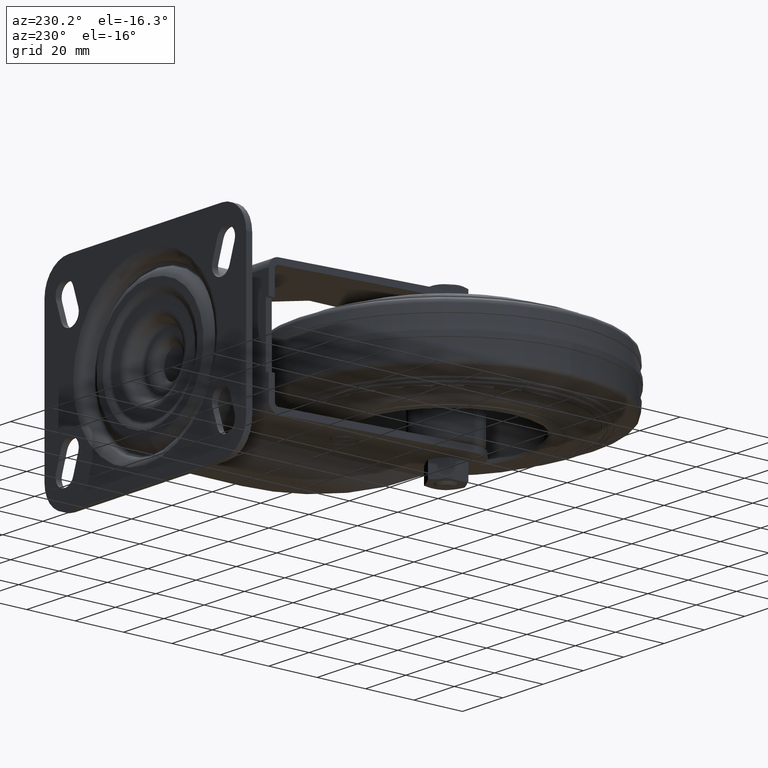
[diagram: clean part render]
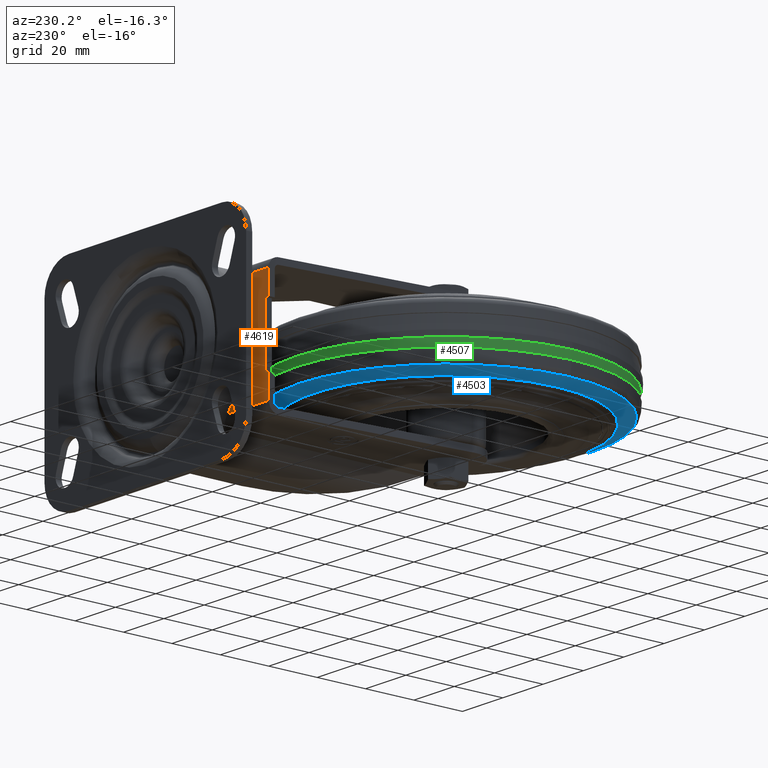
[diagram: same view with three faces highlighted in distinct colors, each labeled with its STEP entity id]
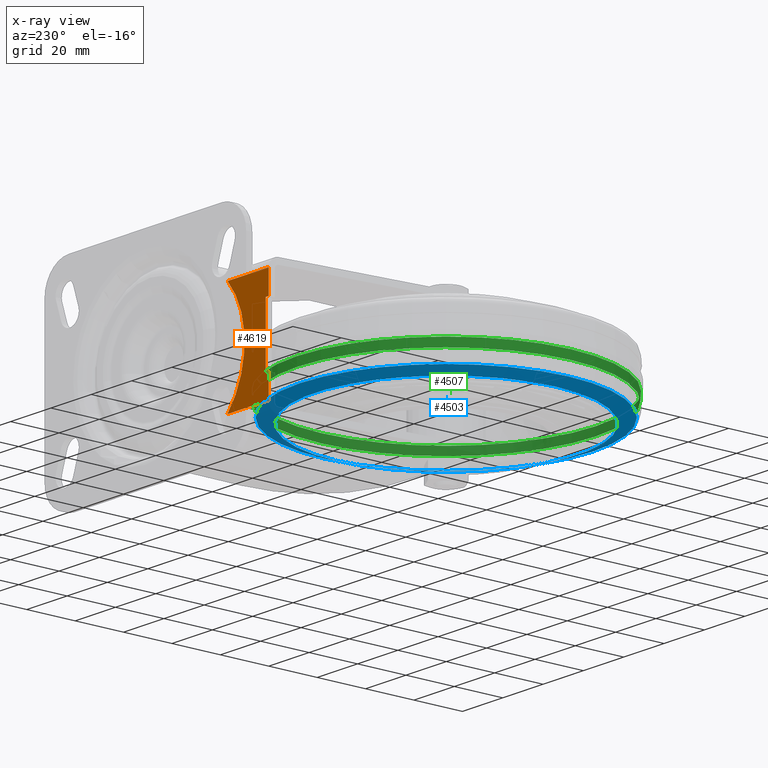
[diagram: x-ray of the same camera — body ghosted, the three highlighted faces saturated]
A machine part, auxiliary view with three faces highlighted in distinct colors.
The next image is the same camera in x-ray (body ghosted, the three faces saturated) — at least one of them is partly hidden behind the body in this view.
Their STEP definitions:

[orange] entity #4619 — the highlighted planar face has unit normal (0, 1, 0).
#464=CIRCLE('',#5260,33.);
#660=FACE_OUTER_BOUND('',#964,.T.);
#964=EDGE_LOOP('',(#3570,#3571,#3572,#3573,#3574,#3575,#3576,#3577));
#1182=LINE('',#7262,#1533);
#1233=LINE('',#7421,#1584);
#1253=LINE('',#7521,#1604);
#1308=LINE('',#7738,#1659);
#1309=LINE('',#7741,#1660);
#1310=LINE('',#7743,#1661);
#1311=LINE('',#7744,#1662);
#1533=VECTOR('',#5946,1000.);
#1584=VECTOR('',#6033,1000.);
#1604=VECTOR('',#6111,1000.);
#1659=VECTOR('',#6354,1000.);
#1660=VECTOR('',#6357,1000.);
#1661=VECTOR('',#6358,1000.);
#1662=VECTOR('',#6359,1000.);
#1928=VERTEX_POINT('',#7259);
#1929=VERTEX_POINT('',#7261);
#1994=VERTEX_POINT('',#7407);
#1995=VERTEX_POINT('',#7420);
#2022=VERTEX_POINT('',#7520);
#2090=VERTEX_POINT('',#7737);
#2091=VERTEX_POINT('',#7740);
#2092=VERTEX_POINT('',#7742);
#2411=EDGE_CURVE('',#1928,#1929,#1182,.T.);
#2479=EDGE_CURVE('',#1995,#1994,#1233,.T.);
#2519=EDGE_CURVE('',#1995,#2022,#1253,.T.);
#2625=EDGE_CURVE('',#2022,#2090,#1308,.T.);
#2626=EDGE_CURVE('',#1929,#1994,#464,.T.);
#2627=EDGE_CURVE('',#2091,#1928,#1309,.T.);
#2628=EDGE_CURVE('',#2091,#2092,#1310,.T.);
#2629=EDGE_CURVE('',#2092,#2090,#1311,.T.);
#3570=ORIENTED_EDGE('',*,*,#2625,.F.);
#3571=ORIENTED_EDGE('',*,*,#2519,.F.);
#3572=ORIENTED_EDGE('',*,*,#2479,.T.);
#3573=ORIENTED_EDGE('',*,*,#2626,.F.);
#3574=ORIENTED_EDGE('',*,*,#2411,.F.);
#3575=ORIENTED_EDGE('',*,*,#2627,.F.);
#3576=ORIENTED_EDGE('',*,*,#2628,.T.);
#3577=ORIENTED_EDGE('',*,*,#2629,.T.);
#4171=PLANE('',#5259);
#4619=ADVANCED_FACE('',(#660),#4171,.T.);
#5259=AXIS2_PLACEMENT_3D('',#7736,#6352,#6353);
#5260=AXIS2_PLACEMENT_3D('',#7739,#6355,#6356);
#5946=DIRECTION('',(1.,0.,0.));
#6033=DIRECTION('',(1.,0.,0.));
#6111=DIRECTION('',(0.,0.,-1.));
#6352=DIRECTION('center_axis',(0.,1.,0.));
#6353=DIRECTION('ref_axis',(0.,0.,1.));
#6354=DIRECTION('',(1.,0.,0.));
#6355=DIRECTION('center_axis',(0.,1.,0.));
#6356=DIRECTION('ref_axis',(0.,0.,1.));
#6357=DIRECTION('',(0.,0.,-1.));
#6358=DIRECTION('',(1.,0.,0.));
#6359=DIRECTION('',(0.,0.,1.));
#7259=CARTESIAN_POINT('',(-8.00000000000036,80.,-22.));
#7261=CARTESIAN_POINT('',(12.4032522475023,80.,-22.));
#7262=CARTESIAN_POINT('',(-26.,80.,-22.));
#7407=CARTESIAN_POINT('',(12.4032522475023,80.,22.));
#7420=CARTESIAN_POINT('',(-8.00000000000036,80.,22.));
#7421=CARTESIAN_POINT('',(-26.,80.,22.));
#7520=CARTESIAN_POINT('',(-8.00000000000035,80.,12.5));
#7521=CARTESIAN_POINT('',(-8.00000000000036,80.,-22.));
#7736=CARTESIAN_POINT('Origin',(-26.,80.,-22.));
#7737=CARTESIAN_POINT('',(-6.50000000000035,80.,12.5));
#7738=CARTESIAN_POINT('',(-26.,80.,12.5));
#7739=CARTESIAN_POINT('Origin',(37.,80.,0.));
#7740=CARTESIAN_POINT('',(-8.00000000000035,80.,-12.5));
#7741=CARTESIAN_POINT('',(-8.00000000000036,80.,-22.));
#7742=CARTESIAN_POINT('',(-6.50000000000035,80.,-12.5));
#7743=CARTESIAN_POINT('',(-26.,80.,-12.5));
#7744=CARTESIAN_POINT('',(-6.50000000000035,80.,-22.));

[blue] entity #4503 — the highlighted conical surface has half-angle 71 deg.
#104=CONICAL_SURFACE('',#5001,60.5139165028887,1.23918376891597);
#330=CIRCLE('',#4999,54.4727592877997);
#332=CIRCLE('',#5002,60.5139165028887);
#544=FACE_OUTER_BOUND('',#825,.T.);
#825=EDGE_LOOP('',(#3014,#3015,#3016,#3017));
#1145=LINE('',#7060,#1496);
#1496=VECTOR('',#5677,60.5139165028887);
#1879=VERTEX_POINT('',#7054);
#1880=VERTEX_POINT('',#7058);
#2316=EDGE_CURVE('',#1879,#1879,#330,.T.);
#2318=EDGE_CURVE('',#1880,#1880,#332,.T.);
#2319=EDGE_CURVE('',#1880,#1879,#1145,.T.);
#3014=ORIENTED_EDGE('',*,*,#2318,.F.);
#3015=ORIENTED_EDGE('',*,*,#2319,.T.);
#3016=ORIENTED_EDGE('',*,*,#2316,.T.);
#3017=ORIENTED_EDGE('',*,*,#2319,.F.);
#4503=ADVANCED_FACE('',(#544),#104,.T.);
#4999=AXIS2_PLACEMENT_3D('',#7055,#5669,#5670);
#5001=AXIS2_PLACEMENT_3D('',#7057,#5673,#5674);
#5002=AXIS2_PLACEMENT_3D('',#7059,#5675,#5676);
#5669=DIRECTION('center_axis',(1.,0.,0.));
#5670=DIRECTION('ref_axis',(0.,0.,-1.));
#5673=DIRECTION('center_axis',(1.,0.,0.));
#5674=DIRECTION('ref_axis',(0.,0.,-1.));
#5675=DIRECTION('center_axis',(1.,0.,0.));
#5676=DIRECTION('ref_axis',(0.,0.,-1.));
#5677=DIRECTION('',(-0.325568154457161,1.15792629714207E-16,-0.945518575599316));
#7054=CARTESIAN_POINT('',(8.98599936426642,-6.67098903025282E-15,54.4727592877997));
#7055=CARTESIAN_POINT('Origin',(8.98599936426642,0.,0.));
#7057=CARTESIAN_POINT('Origin',(11.0661366096457,0.,0.));
#7058=CARTESIAN_POINT('',(11.0661366096457,-7.41081741491329E-15,60.5139165028887));
#7059=CARTESIAN_POINT('Origin',(11.0661366096457,0.,0.));
#7060=CARTESIAN_POINT('',(11.0661366096457,-7.41081741491329E-15,60.5139165028887));

[green] entity #4507 — the highlighted conical surface has half-angle 4 deg.
#106=CONICAL_SURFACE('',#5010,61.8414437240865,0.0698131700797712);
#336=CIRCLE('',#5009,61.5966998822842);
#337=CIRCLE('',#5011,61.8414437240865);
#548=FACE_OUTER_BOUND('',#830,.T.);
#830=EDGE_LOOP('',(#3028,#3029,#3030,#3031));
#1147=LINE('',#7075,#1498);
#1498=VECTOR('',#5697,61.8414437240865);
#1883=VERTEX_POINT('',#7070);
#1884=VERTEX_POINT('',#7073);
#2324=EDGE_CURVE('',#1883,#1883,#336,.T.);
#2325=EDGE_CURVE('',#1884,#1884,#337,.T.);
#2326=EDGE_CURVE('',#1884,#1883,#1147,.T.);
#3028=ORIENTED_EDGE('',*,*,#2325,.F.);
#3029=ORIENTED_EDGE('',*,*,#2326,.T.);
#3030=ORIENTED_EDGE('',*,*,#2324,.T.);
#3031=ORIENTED_EDGE('',*,*,#2326,.F.);
#4507=ADVANCED_FACE('',(#548),#106,.T.);
#5009=AXIS2_PLACEMENT_3D('',#7071,#5691,#5692);
#5010=AXIS2_PLACEMENT_3D('',#7072,#5693,#5694);
#5011=AXIS2_PLACEMENT_3D('',#7074,#5695,#5696);
#5691=DIRECTION('center_axis',(1.,0.,0.));
#5692=DIRECTION('ref_axis',(0.,0.,-1.));
#5693=DIRECTION('center_axis',(1.,0.,0.));
#5694=DIRECTION('ref_axis',(0.,0.,-1.));
#5695=DIRECTION('center_axis',(1.,0.,0.));
#5696=DIRECTION('ref_axis',(0.,0.,-1.));
#5697=DIRECTION('',(-0.997564050259824,8.5427042290547E-18,-0.0697564737441233));
#7070=CARTESIAN_POINT('',(16.25,-7.54342013488795E-15,61.5966998822842));
#7071=CARTESIAN_POINT('Origin',(16.25,0.,0.));
#7072=CARTESIAN_POINT('Origin',(19.75,0.,0.));
#7073=CARTESIAN_POINT('',(19.75,-7.57339261113537E-15,61.8414437240865));
#7074=CARTESIAN_POINT('Origin',(19.75,0.,0.));
#7075=CARTESIAN_POINT('',(19.75,-7.57339261113537E-15,61.8414437240865));